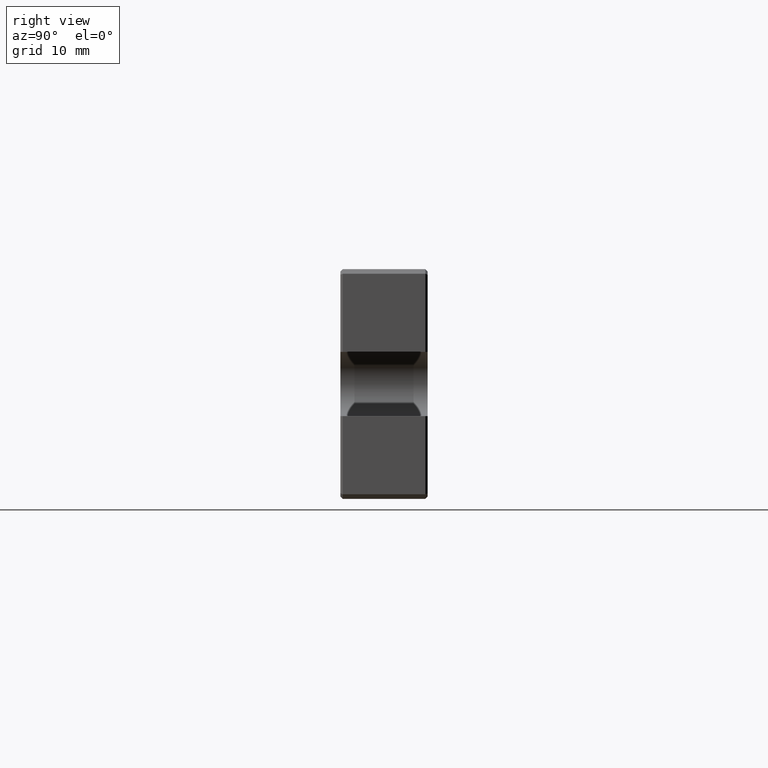
[diagram: clean part render]
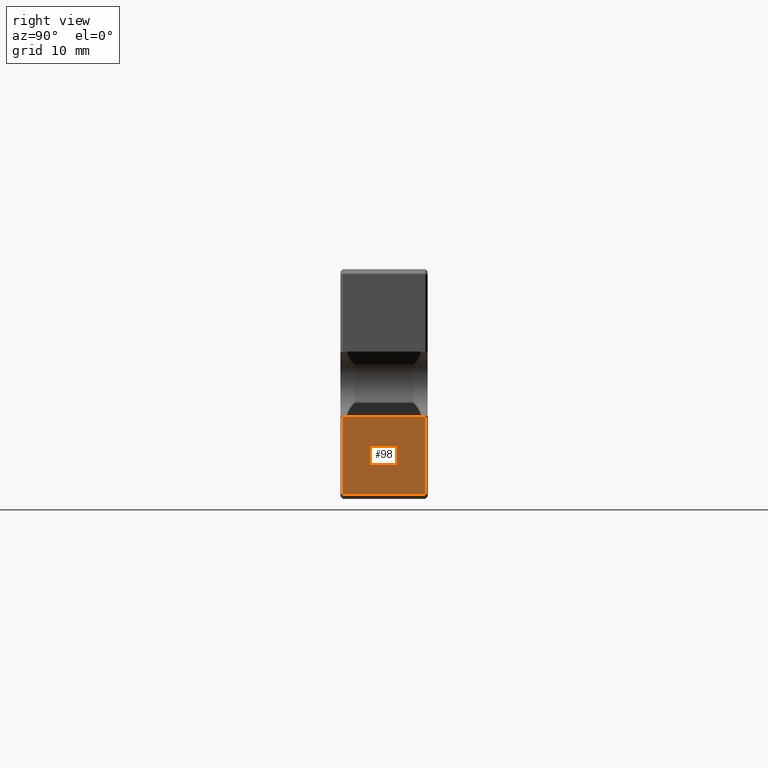
[diagram: same view with one face highlighted and labeled with its STEP entity id]
A machine part, right view. The second image highlights one B-rep face of the part: STEP entity #98.
In plain terms, the highlighted planar face has unit normal (-1, 0, -0).
Its self-contained STEP definition (entity closure, byte-faithful):
#20 = VECTOR ( 'NONE', #331, 1000.000000000000000 ) ;
#98 = ADVANCED_FACE ( 'NONE', ( #1178 ), #238, .F. ) ;
#105 = EDGE_CURVE ( 'NONE', #1095, #564, #126, .T. ) ;
#126 = LINE ( 'NONE', #493, #20 ) ;
#174 = CARTESIAN_POINT ( 'NONE',  ( 37.50000000000000000, 0.2500000000000071609, -12.50000000000000178 ) ) ;
#186 = DIRECTION ( 'NONE',  ( -2.775557561562891351E-16, 0.000000000000000000, 1.000000000000000000 ) ) ;
#223 = VECTOR ( 'NONE', #786, 1000.000000000000000 ) ;
#234 = ORIENTED_EDGE ( 'NONE', *, *, #1047, .T. ) ;
#238 = PLANE ( 'NONE',  #733 ) ;
#275 = LINE ( 'NONE', #174, #430 ) ;
#331 = DIRECTION ( 'NONE',  ( 0.000000000000000000, 1.000000000000000000, 0.000000000000000000 ) ) ;
#387 = VECTOR ( 'NONE', #186, 1000.000000000000000 ) ;
#408 = DIRECTION ( 'NONE',  ( -2.775557561562891351E-16, 0.000000000000000000, 1.000000000000000000 ) ) ;
#411 = LINE ( 'NONE', #902, #223 ) ;
#430 = VECTOR ( 'NONE', #1193, 1000.000000000000000 ) ;
#477 = ORIENTED_EDGE ( 'NONE', *, *, #978, .T. ) ;
#493 = CARTESIAN_POINT ( 'NONE',  ( 37.50000000000000000, 9.500000000000000000, -11.99999999999999467 ) ) ;
#564 = VERTEX_POINT ( 'NONE', #882 ) ;
#604 = CARTESIAN_POINT ( 'NONE',  ( 37.50000000000000000, 9.500000000000000000, -12.50000000000000178 ) ) ;
#700 = EDGE_LOOP ( 'NONE', ( #950, #477, #234, #856 ) ) ;
#733 = AXIS2_PLACEMENT_3D ( 'NONE', #604, #1064, #408 ) ;
#786 = DIRECTION ( 'NONE',  ( 0.000000000000000000, -1.000000000000000000, 0.000000000000000000 ) ) ;
#824 = CARTESIAN_POINT ( 'NONE',  ( 37.49999999999999289, 9.250000000000000000, 11.99999999999999112 ) ) ;
#842 = LINE ( 'NONE', #824, #387 ) ;
#856 = ORIENTED_EDGE ( 'NONE', *, *, #105, .T. ) ;
#882 = CARTESIAN_POINT ( 'NONE',  ( 37.50000000000000000, 9.250000000000000000, -11.99999999999999467 ) ) ;
#902 = CARTESIAN_POINT ( 'NONE',  ( 37.50000000000000000, 9.500000000000000000, -3.500000000000001332 ) ) ;
#950 = ORIENTED_EDGE ( 'NONE', *, *, #1129, .T. ) ;
#978 = EDGE_CURVE ( 'NONE', #993, #1119, #411, .T. ) ;
#993 = VERTEX_POINT ( 'NONE', #1062 ) ;
#1006 = CARTESIAN_POINT ( 'NONE',  ( 37.50000000000000000, 0.2500000000000071609, -3.500000000000001332 ) ) ;
#1047 = EDGE_CURVE ( 'NONE', #1119, #1095, #275, .T. ) ;
#1062 = CARTESIAN_POINT ( 'NONE',  ( 37.49999999999999289, 9.250000000000000000, -3.500000000000000000 ) ) ;
#1064 = DIRECTION ( 'NONE',  ( -1.000000000000000000, 0.000000000000000000, -2.775557561562891351E-16 ) ) ;
#1095 = VERTEX_POINT ( 'NONE', #1100 ) ;
#1100 = CARTESIAN_POINT ( 'NONE',  ( 37.50000000000000000, 0.2500000000000071609, -11.99999999999999467 ) ) ;
#1119 = VERTEX_POINT ( 'NONE', #1006 ) ;
#1129 = EDGE_CURVE ( 'NONE', #564, #993, #842, .T. ) ;
#1178 = FACE_OUTER_BOUND ( 'NONE', #700, .T. ) ;
#1193 = DIRECTION ( 'NONE',  ( 2.775557561562891351E-16, -0.000000000000000000, -1.000000000000000000 ) ) ;